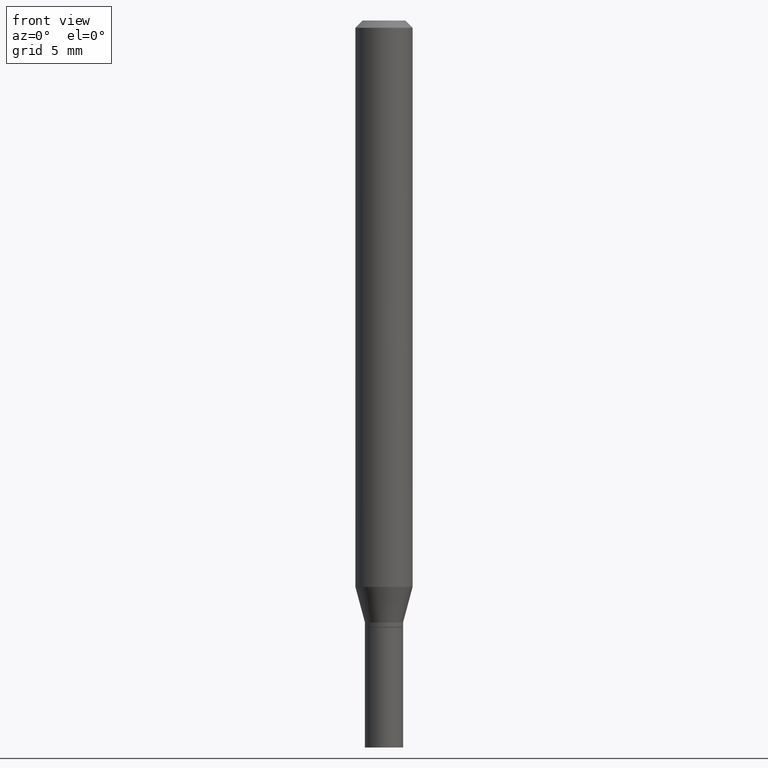
[diagram: clean part render]
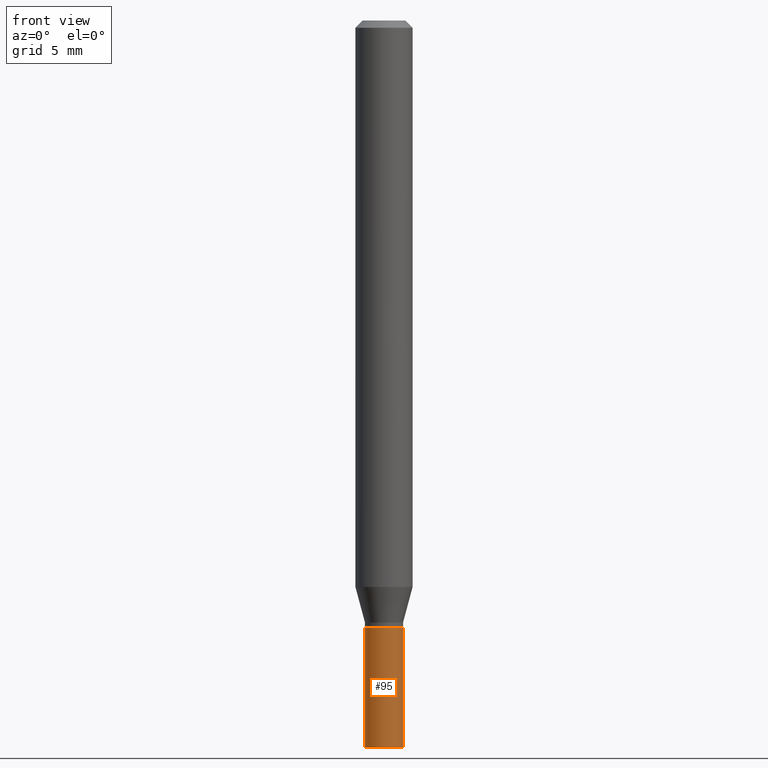
[diagram: same view with one face highlighted and labeled with its STEP entity id]
A machine part, front view. The second image highlights one B-rep face of the part: STEP entity #95.
In plain terms, the highlighted cylindrical surface (edge-blend (fillet) strip) has radius 0.9995 mm, axis along (-0, 0, 1).
Its self-contained STEP definition (entity closure, byte-faithful):
#11 = VERTEX_POINT ( 'NONE', #271 ) ;
#14 = VECTOR ( 'NONE', #391, 39.37007874015748143 ) ;
#22 = CARTESIAN_POINT ( 'NONE',  ( -0.03935000000000000303, 2.795985665215994447E-16, -1.935600958015305291E-30 ) ) ;
#42 = VERTEX_POINT ( 'NONE', #413 ) ;
#62 = VECTOR ( 'NONE', #278, 39.37007874015748143 ) ;
#84 = ORIENTED_EDGE ( 'NONE', *, *, #298, .F. ) ;
#88 = ORIENTED_EDGE ( 'NONE', *, *, #358, .F. ) ;
#95 = ADVANCED_FACE ( 'NONE', ( #279 ), #420, .T. ) ;
#118 = EDGE_LOOP ( 'NONE', ( #88, #309, #437, #84 ) ) ;
#120 = AXIS2_PLACEMENT_3D ( 'NONE', #319, #458, #324 ) ;
#137 = CIRCLE ( 'NONE', #351, 0.03935000000000000303 ) ;
#146 = CARTESIAN_POINT ( 'NONE',  ( 0.03935000000000000303, -4.646114217598574191E-15, -1.252000000000000224 ) ) ;
#154 = CIRCLE ( 'NONE', #120, 0.03935000000000000303 ) ;
#157 = VERTEX_POINT ( 'NONE', #146 ) ;
#179 = CARTESIAN_POINT ( 'NONE',  ( 0.000000000000000000, 0.000000000000000000, 0.000000000000000000 ) ) ;
#191 = EDGE_CURVE ( 'NONE', #42, #11, #154, .T. ) ;
#203 = EDGE_CURVE ( 'NONE', #11, #157, #249, .T. ) ;
#214 = CARTESIAN_POINT ( 'NONE',  ( 0.03935000000000000303, -2.747795813669546211E-16, 1.918775561275701074E-30 ) ) ;
#230 = CARTESIAN_POINT ( 'NONE',  ( 3.061726945343791391E-29, -4.371334636231619274E-15, -1.252000000000000224 ) ) ;
#235 = DIRECTION ( 'NONE',  ( -2.445468806185136597E-29, 3.491481338843145583E-15, 1.000000000000000000 ) ) ;
#249 = LINE ( 'NONE', #214, #14 ) ;
#251 = AXIS2_PLACEMENT_3D ( 'NONE', #179, #427, #389 ) ;
#255 = CARTESIAN_POINT ( 'NONE',  ( -0.03935000000000000303, -4.524679755726570119E-15, -1.252000000000000224 ) ) ;
#271 = CARTESIAN_POINT ( 'NONE',  ( 0.03935000000000000303, -5.512001589631673094E-15, -1.500000000000000222 ) ) ;
#272 = DIRECTION ( 'NONE',  ( 1.000000000000000000, -6.982962677686269077E-15, 0.000000000000000000 ) ) ;
#278 = DIRECTION ( 'NONE',  ( -2.445468806185136877E-29, 3.491481338843145188E-15, 1.000000000000000000 ) ) ;
#279 = FACE_OUTER_BOUND ( 'NONE', #118, .T. ) ;
#298 = EDGE_CURVE ( 'NONE', #439, #157, #137, .T. ) ;
#309 = ORIENTED_EDGE ( 'NONE', *, *, #191, .T. ) ;
#319 = CARTESIAN_POINT ( 'NONE',  ( 3.668203209277704895E-29, -5.237222008264718177E-15, -1.500000000000000222 ) ) ;
#324 = DIRECTION ( 'NONE',  ( 1.000000000000000000, -6.982962677686269077E-15, 0.000000000000000000 ) ) ;
#351 = AXIS2_PLACEMENT_3D ( 'NONE', #230, #235, #272 ) ;
#358 = EDGE_CURVE ( 'NONE', #42, #439, #376, .T. ) ;
#376 = LINE ( 'NONE', #22, #62 ) ;
#389 = DIRECTION ( 'NONE',  ( 1.000000000000000000, -6.982962677686266711E-15, 4.876176775795936353E-29 ) ) ;
#391 = DIRECTION ( 'NONE',  ( -2.445468806185136877E-29, 3.491481338843145188E-15, 1.000000000000000000 ) ) ;
#413 = CARTESIAN_POINT ( 'NONE',  ( -0.03935000000000000303, -4.524679755726570119E-15, -1.500000000000000222 ) ) ;
#420 = CYLINDRICAL_SURFACE ( 'NONE', #251, 0.03935000000000000303 ) ;
#427 = DIRECTION ( 'NONE',  ( -2.445468806185136597E-29, 3.491481338843145583E-15, 1.000000000000000000 ) ) ;
#437 = ORIENTED_EDGE ( 'NONE', *, *, #203, .T. ) ;
#439 = VERTEX_POINT ( 'NONE', #255 ) ;
#458 = DIRECTION ( 'NONE',  ( -2.445468806185136597E-29, 3.491481338843145583E-15, 1.000000000000000000 ) ) ;